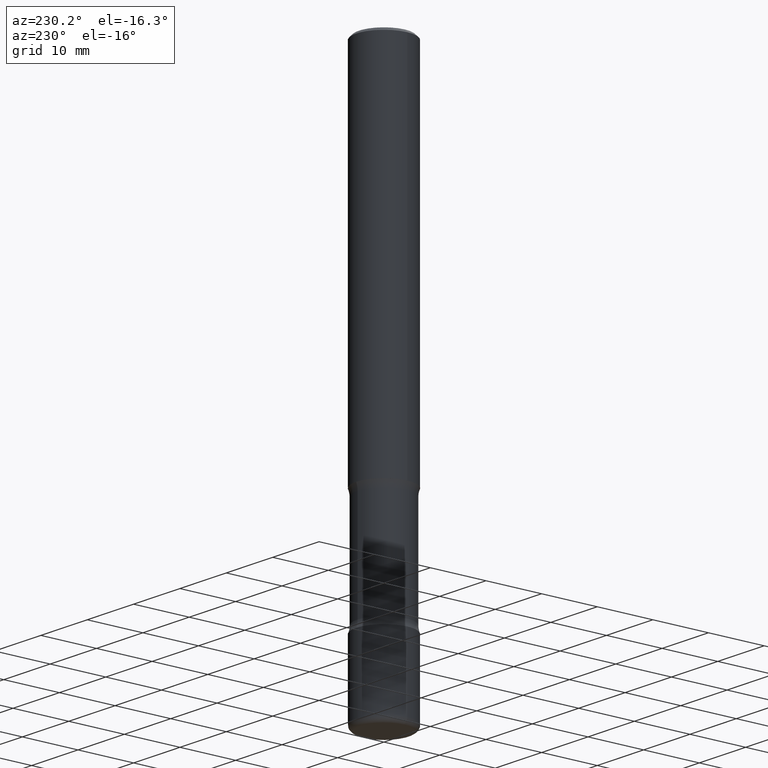
[diagram: clean part render]
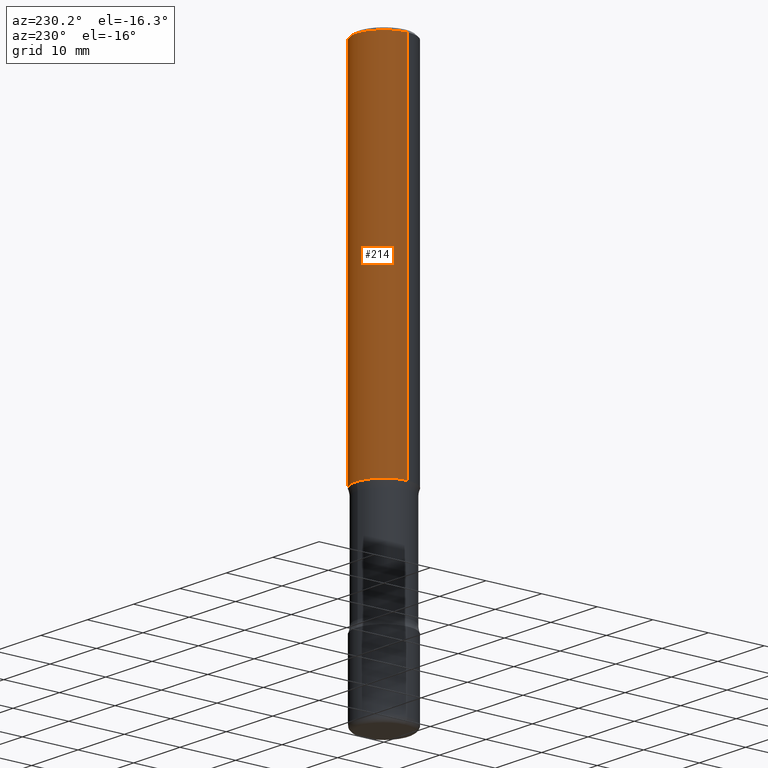
[diagram: same view with one face highlighted and labeled with its STEP entity id]
A machine part, auxiliary view. The second image highlights one B-rep face of the part: STEP entity #214.
In plain terms, the highlighted cylindrical surface (edge-blend (fillet) strip) has radius 5 mm, axis along (-0, 0, 1).
Its self-contained STEP definition (entity closure, byte-faithful):
#20 = CARTESIAN_POINT ( 'NONE',  ( 4.890937612370289799E-31, -6.982962677686315028E-17, -0.02000000000000006981 ) ) ;
#29 = CARTESIAN_POINT ( 'NONE',  ( 6.257954675027765161E-29, -8.934700746099610252E-15, -2.559000000000000163 ) ) ;
#52 = DIRECTION ( 'NONE',  ( 1.000000000000000000, -6.982962677686266711E-15, 4.876176775795935793E-29 ) ) ;
#59 = CARTESIAN_POINT ( 'NONE',  ( -0.1968499999999999694, 1.398703375343756999E-15, -9.682923725166782276E-30 ) ) ;
#76 = CARTESIAN_POINT ( 'NONE',  ( 0.1968500000000001082, -1.030929694920215344E-14, -2.559000000000000163 ) ) ;
#83 = VERTEX_POINT ( 'NONE', #318 ) ;
#95 = AXIS2_PLACEMENT_3D ( 'NONE', #20, #547, #459 ) ;
#99 = DIRECTION ( 'NONE',  ( -2.445468806185136877E-29, 3.491481338843145188E-15, 1.000000000000000000 ) ) ;
#116 = AXIS2_PLACEMENT_3D ( 'NONE', #525, #440, #52 ) ;
#130 = ORIENTED_EDGE ( 'NONE', *, *, #209, .T. ) ;
#151 = VECTOR ( 'NONE', #179, 39.37007874015748143 ) ;
#152 = CIRCLE ( 'NONE', #532, 0.1968500000000001082 ) ;
#158 = EDGE_CURVE ( 'NONE', #296, #479, #264, .T. ) ;
#167 = ORIENTED_EDGE ( 'NONE', *, *, #329, .T. ) ;
#171 = CARTESIAN_POINT ( 'NONE',  ( 0.1968499999999998307, -1.420318657638187938E-15, -0.02000000000000006981 ) ) ;
#179 = DIRECTION ( 'NONE',  ( -2.445468806185136877E-29, 3.491481338843145188E-15, 1.000000000000000000 ) ) ;
#180 = ORIENTED_EDGE ( 'NONE', *, *, #285, .F. ) ;
#209 = EDGE_CURVE ( 'NONE', #491, #83, #235, .T. ) ;
#214 = ADVANCED_FACE ( 'NONE', ( #306 ), #485, .T. ) ;
#235 = LINE ( 'NONE', #59, #151 ) ;
#245 = DIRECTION ( 'NONE',  ( 1.000000000000000000, -6.982962677686265133E-15, 0.000000000000000000 ) ) ;
#264 = LINE ( 'NONE', #453, #554 ) ;
#285 = EDGE_CURVE ( 'NONE', #479, #83, #428, .T. ) ;
#286 = DIRECTION ( 'NONE',  ( -2.445468806185136597E-29, 3.491481338843145583E-15, 1.000000000000000000 ) ) ;
#296 = VERTEX_POINT ( 'NONE', #76 ) ;
#306 = FACE_OUTER_BOUND ( 'NONE', #470, .T. ) ;
#318 = CARTESIAN_POINT ( 'NONE',  ( -0.1968499999999998307, 1.304766576325677324E-15, -0.02000000000000006981 ) ) ;
#329 = EDGE_CURVE ( 'NONE', #296, #491, #152, .T. ) ;
#428 = CIRCLE ( 'NONE', #95, 0.1968499999999998307 ) ;
#440 = DIRECTION ( 'NONE',  ( -2.445468806185136597E-29, 3.491481338843145583E-15, 1.000000000000000000 ) ) ;
#453 = CARTESIAN_POINT ( 'NONE',  ( 0.1968499999999999694, -1.374596203102541411E-15, 9.598753983154298056E-30 ) ) ;
#459 = DIRECTION ( 'NONE',  ( 1.000000000000000000, -6.982962677686266711E-15, 0.000000000000000000 ) ) ;
#470 = EDGE_LOOP ( 'NONE', ( #167, #130, #180, #533 ) ) ;
#479 = VERTEX_POINT ( 'NONE', #171 ) ;
#485 = CYLINDRICAL_SURFACE ( 'NONE', #116, 0.1968499999999999694 ) ;
#491 = VERTEX_POINT ( 'NONE', #516 ) ;
#516 = CARTESIAN_POINT ( 'NONE',  ( -0.1968500000000001082, -3.103561811094476227E-15, -2.559000000000000163 ) ) ;
#525 = CARTESIAN_POINT ( 'NONE',  ( 0.000000000000000000, 0.000000000000000000, 0.000000000000000000 ) ) ;
#532 = AXIS2_PLACEMENT_3D ( 'NONE', #29, #286, #245 ) ;
#533 = ORIENTED_EDGE ( 'NONE', *, *, #158, .F. ) ;
#547 = DIRECTION ( 'NONE',  ( -2.445468806185136597E-29, 3.491481338843145583E-15, 1.000000000000000000 ) ) ;
#554 = VECTOR ( 'NONE', #99, 39.37007874015748143 ) ;